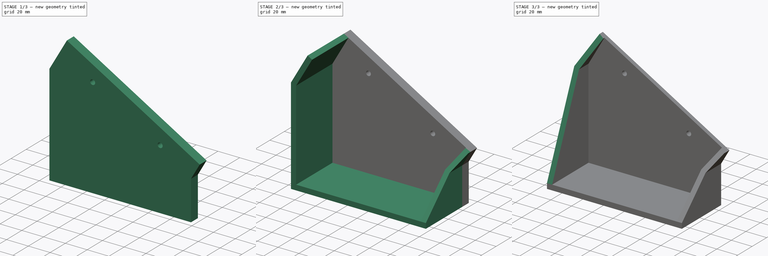
[diagram: build sequence overview — one tinted view per stage of 3, left to right]
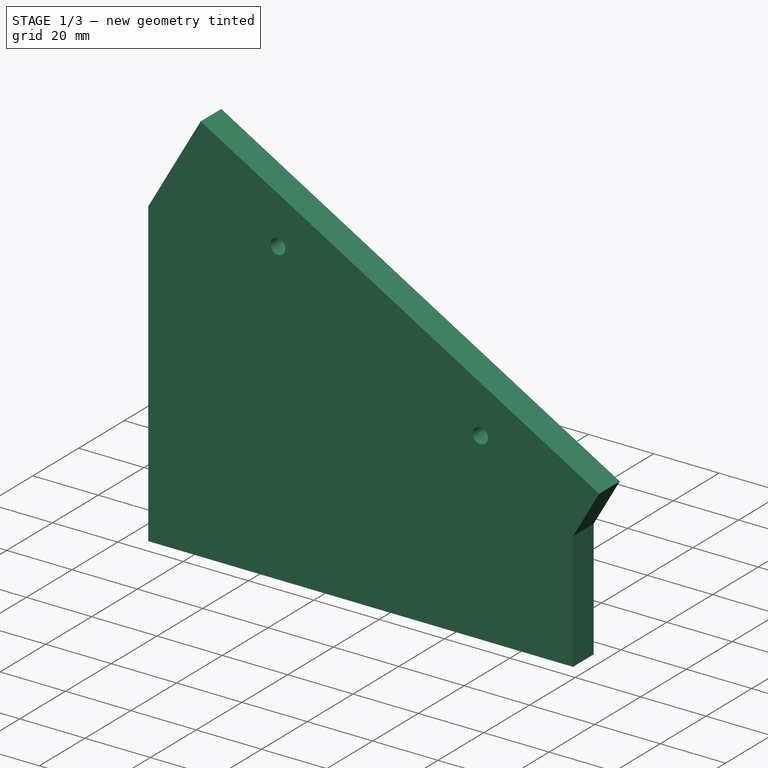
[diagram: stage 1 of 3 — iso view after this stage's code; geometry added in this stage tinted green]
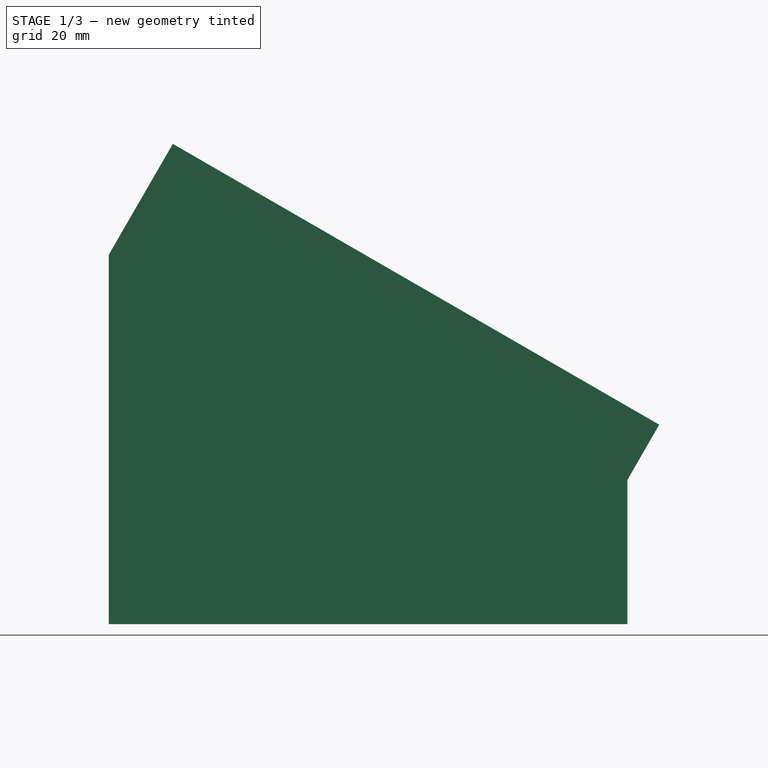
[diagram: stage 1 of 3 — front view after this stage's code; geometry added in this stage tinted green]
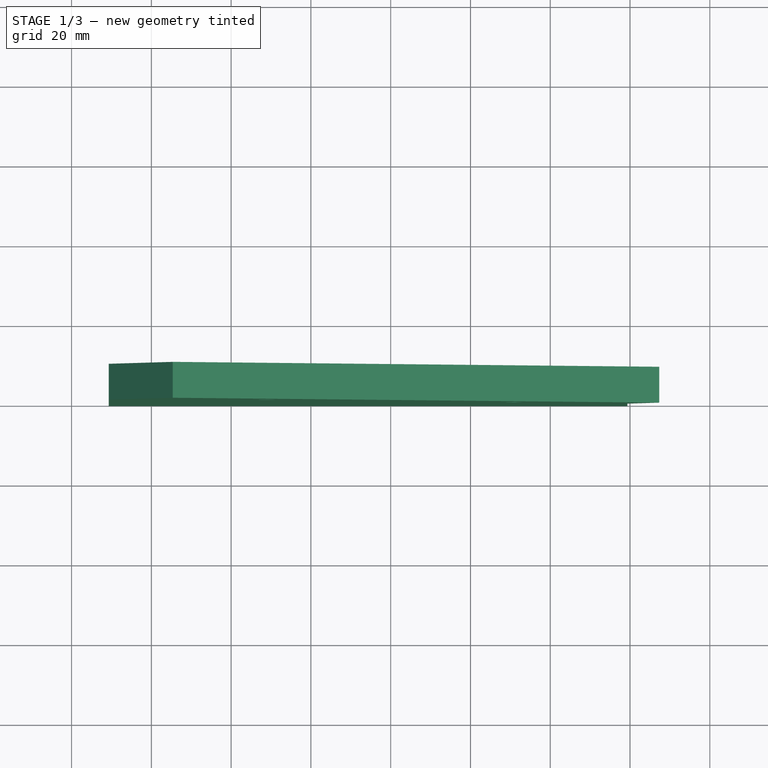
[diagram: stage 1 of 3 — top view after this stage's code; geometry added in this stage tinted green]
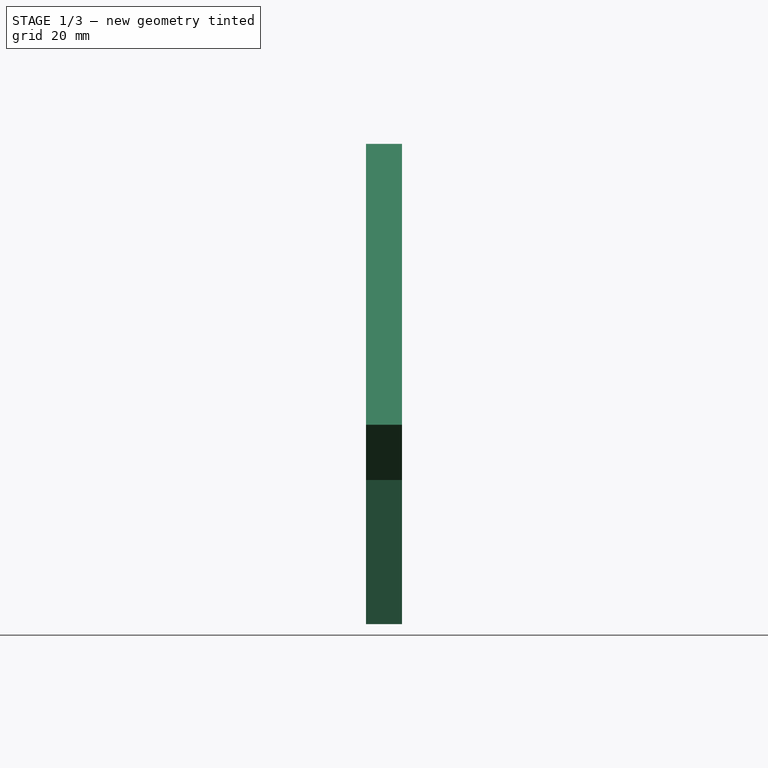
[diagram: stage 1 of 3 — right view after this stage's code; geometry added in this stage tinted green]
FCSTD DOCUMENT  (FreeCAD 0.21R33668 +26 (Git))
Label: eurorack_leg
License: All rights reserved
LicenseURL: https://en.wikipedia.org/wiki/All_rights_reserved
objects: Sketcher::SketchObject×8, PartDesign::Pad×3, PartDesign::Plane×3, PartDesign::Pocket×3, PartDesign::SubtractivePipe×1, PartDesign::Body×1
note: 26 computed .brp shape members not serialized (recipe doc carries the construction recipe); baked Part::Feature solids carry a one-line shape summary decoded from their .brp

FEATURE [Sketcher::SketchObject] Sketch
  FullyConstrained = true
  MapMode = 5
  Placement = pos=(0,0,0) rot=(1,0,0;1.5708rad)
  Support = -> [XZ_Plane]
  sketch-geometry (14):
    g0: LineSegment StartX=-70.6775 StartY=0 StartZ=0 EndX=59.3225 EndY=0 EndZ=0
    g1: LineSegment StartX=-70.6775 StartY=0 StartZ=0 EndX=-70.6775 EndY=92.597 EndZ=0
    g2: LineSegment StartX=67.3225 StartY=50 StartZ=0 EndX=-54.6225 EndY=120.405 EndZ=0
    g3: Circle CenterX=-30.9821 CenterY=92.0915 CenterZ=0 NormalX=0 NormalY=0 NormalZ=1 AngleXU=0 Radius=2.3
    g4: Circle CenterX=30.9821 CenterY=56.3165 CenterZ=0 NormalX=0 NormalY=0 NormalZ=1 AngleXU=0 Radius=2.3
    g5: GeomPoint X=0 Y=74.204 Z=0
    g6: LineSegment StartX=-62.9924 StartY=95.908 StartZ=0 EndX=50.2924 EndY=30.503 EndZ=0
    g7: LineSegment StartX=-62.9924 StartY=95.908 StartZ=0 EndX=-50.2924 EndY=117.905 EndZ=0
    g8: LineSegment StartX=-50.2924 StartY=117.905 StartZ=0 EndX=62.9924 EndY=52.5 EndZ=0
    g9: LineSegment StartX=62.9924 StartY=52.5 StartZ=0 EndX=50.2924 EndY=30.503 EndZ=0
    g10: LineSegment StartX=-56.6424 StartY=106.906 StartZ=0 EndX=56.6424 EndY=41.5015 EndZ=0
    g11: LineSegment StartX=-54.6225 StartY=120.405 StartZ=0 EndX=-70.6775 EndY=92.597 EndZ=0
    g12: LineSegment StartX=67.3225 StartY=50 StartZ=0 EndX=59.3225 EndY=36.1436 EndZ=0
    g13: LineSegment StartX=59.3225 StartY=36.1436 StartZ=0 EndX=59.3225 EndY=0 EndZ=0
  constraints (44):
    c: Coincident(g1,g0)
    c: Vertical(g1)
    c: Angle(g1,g2) = 1.0472
    c: Equal(g4,g3)
    c: Diameter(g4) = 4.6
    c: Symmetric(g3,g4,g5)
    c: Parallel(g6,g2)
    c: Coincident(g7,g6)
    c: Coincident(g9,g6)
    c: Parallel(g8,g2)
    c: Perpendicular(g8,g9)
    c: Perpendicular(g8,g7)
    c: Distance(g7) = 25.4
    c: Distance(g6) = 130.81
    c: PointOnObject(g10,g9)
    c: Parallel(g10,g8)
    c: Symmetric(g6,g7,g10)
    c: PointOnObject(g3,g10)
    c: Coincident(g7,g8)
    c: Coincident(g9,g8)
    c: Symmetric(g10,g10,g5)
    c: PointOnObject(g7,g2)
    c: PointOnObject(g5,g-2)
    c: Distance(g3,g4) = 71.55
    c: Parallel(g11,g7)
    c: Coincident(g13,g12)
    c: Parallel(g12,g9)
    c: Vertical(g13)
    c: Distance(g12,g8) = 5
    c: Distance(g11,g7) = 5
    c: Coincident(g2,g11)
    c: Coincident(g1,g11)
    c: Coincident(g0,g13)
    c: Coincident(g2,g12)
    c: DistanceY(g-1,g2) = 50
    c: Horizontal(g0)
    c: PointOnObject(g0,g-1)
    c: DistanceX(g0,g0) = 130
    c: Distance(g12) = 16
    c: Angle(g1,g11) = 2.61799
    c: Distance(g2) = 140.81
    c: DistanceX(g-1,g2) = 67.3225
    c: DistanceX(g0,g-1) = 70.6775
    c: Distance(g3,g11) = 34.63
FEATURE [PartDesign::Pad] Pad
  Direction = (0,-1,-2e-16)
  Length = 9
  Length2 = 10
  Placement = pos=(0,0,0) rot=(1,0,0;1.5708rad)
  Profile = -> Sketch
  ReferenceAxis = -> Sketch [N_Axis]
  Refine = true
  Reversed = true
  Type = 0
FEATURE [Sketcher::SketchObject] Sketch001
  FullyConstrained = true
  MapMode = 5
  Support = -> [XY_Plane]
  sketch-geometry (4):
    g0: LineSegment StartX=-70.6775 StartY=9 StartZ=0 EndX=59.3225 EndY=9 EndZ=0
    g1: LineSegment StartX=59.3225 StartY=9 StartZ=0 EndX=59.3225 EndY=-50 EndZ=0
    g2: LineSegment StartX=59.3225 StartY=-50 StartZ=0 EndX=-70.6775 EndY=-50 EndZ=0
    g3: LineSegment StartX=-70.6775 StartY=-50 StartZ=0 EndX=-70.6775 EndY=9 EndZ=0
  constraints (12):
    c: Coincident(g0,g1)
    c: Coincident(g1,g2)
    c: Coincident(g2,g3)
    c: Coincident(g3,g0)
    c: Horizontal(g0)
    c: Horizontal(g2)
    c: Vertical(g1)
    c: Vertical(g3)
    c: DistanceX(g0,g0) = 130
    c: DistanceX(g-1,g0) = 59.3225
    c: DistanceY(g1,g-1) = 50
    c: DistanceY(g-1,g0) = 9
FEATURE [PartDesign::Plane] DatumPlane
  AttachmentOffset = pos=(0,0,67.3225) rot=(0,0,1;0rad)
  Length = 95.8858
  MapMode = 5
  Placement = pos=(67.3225,-1.49e-14,1.49e-14) rot=(0.57735,0.57735,0.57735;2.0944rad)
  ResizeMode = 0
  Support = -> [YZ_Plane]
  Width = 166.291
FEATURE [Sketcher::SketchObject] Sketch002
  FullyConstrained = true
  MapMode = 5
  Placement = pos=(67.3225,-1.49e-14,1.49e-14) rot=(0.57735,0.57735,0.57735;2.0944rad)
  Support = -> [DatumPlane]
  sketch-geometry (6):
    g0: LineSegment StartX=-50 StartY=0 StartZ=0 EndX=0 EndY=0 EndZ=0
    g1: LineSegment StartX=0 StartY=0 StartZ=0 EndX=0 EndY=53 EndZ=0
    g2: LineSegment StartX=-50 StartY=0 StartZ=0 EndX=-50 EndY=5 EndZ=0
    g3: LineSegment StartX=-50 StartY=5 StartZ=0 EndX=0 EndY=53 EndZ=0
    g4: LineSegment StartX=-50 StartY=5 StartZ=0 EndX=-50 EndY=53 EndZ=0
    g5: LineSegment StartX=-50 StartY=53 StartZ=0 EndX=0 EndY=53 EndZ=0
  constraints (16):
    c: PointOnObject(g0,g-1)
    c: Coincident(g0,g-1)
    c: Coincident(g1,g0)
    c: PointOnObject(g1,g-2)
    c: Distance(g1) = 53
    c: DistanceX(g0,g0) = 50
    c: Coincident(g2,g0)
    c: Vertical(g2)
    c: Coincident(g3,g2)
    c: DistanceY(g2,g2) = 5
    c: Coincident(g4,g2)
    c: Vertical(g4)
    c: Coincident(g5,g4)
    c: Coincident(g5,g3)
    c: Horizontal(g5)
    c: Coincident(g3,g1)
FEATURE [PartDesign::Plane] DatumPlane001
  AttachmentOffset = pos=(0,0,-70.6775) rot=(0,0,1;0rad)
  Length = 95.8858
  MapMode = 5
  Placement = pos=(-70.6775,1.57e-14,-1.57e-14) rot=(0.57735,0.57735,0.57735;2.0944rad)
  ResizeMode = 0
  Support = -> [YZ_Plane]
  Width = 166.291
FEATURE [Sketcher::SketchObject] Sketch003
  FullyConstrained = true
  MapMode = 5
  Placement = pos=(-70.6775,1.57e-14,-1.57e-14) rot=(0.57735,0.57735,0.57735;2.0944rad)
  Support = -> [DatumPlane001]
  sketch-geometry (6):
    g0: LineSegment StartX=0 StartY=121.405 StartZ=0 EndX=0 EndY=0 EndZ=0
    g1: LineSegment StartX=0 StartY=0 StartZ=0 EndX=-50 EndY=0 EndZ=0
    g2: LineSegment StartX=-50 StartY=0 StartZ=0 EndX=-50 EndY=5 EndZ=0
    g3: LineSegment StartX=-50 StartY=5 StartZ=0 EndX=0 EndY=121.405 EndZ=0
    g4: LineSegment StartX=-50 StartY=5 StartZ=0 EndX=-50 EndY=121.405 EndZ=0
    g5: LineSegment StartX=-50 StartY=121.405 StartZ=0 EndX=0 EndY=121.405 EndZ=0
  constraints (16):
    c: PointOnObject(g0,g-2)
    c: Coincident(g0,g-1)
    c: Coincident(g1,g0)
    c: PointOnObject(g1,g-1)
    c: Coincident(g2,g1)
    c: Coincident(g3,g2)
    c: Vertical(g2)
    c: DistanceX(g1,g1) = 50
    c: DistanceY(g0,g0) = 121.405
    c: DistanceY(g2,g2) = 5
    c: Coincident(g4,g3)
    c: Vertical(g4)
    c: Coincident(g5,g3)
    c: Coincident(g5,g4)
    c: Horizontal(g5)
    c: Coincident(g3,g0)
FEATURE [Sketcher::SketchObject] Sketch004
  FullyConstrained = true
  MapMode = 5
  Placement = pos=(0,0,0) rot=(1,0,0;1.5708rad)
  Support = -> [XZ_Plane]
  sketch-geometry (13):
    g0: LineSegment StartX=-70.6775 StartY=92.597 StartZ=0 EndX=-70.6775 EndY=0 EndZ=0
    g1: LineSegment StartX=-70.6775 StartY=0 StartZ=0 EndX=-65.6775 EndY=0 EndZ=0
    g2: LineSegment StartX=-65.6775 StartY=0 StartZ=0 EndX=-65.6775 EndY=91.2572 EndZ=0
    g3: LineSegment StartX=59.3225 StartY=36.1436 StartZ=0 EndX=59.3225 EndY=0 EndZ=0
    g4: LineSegment StartX=59.3225 StartY=0 StartZ=0 EndX=54.3225 EndY=0 EndZ=0
    g5: LineSegment StartX=-70.6775 StartY=92.597 StartZ=0 EndX=-54.6225 EndY=120.405 EndZ=0
    g6: LineSegment StartX=59.3225 StartY=36.1436 StartZ=0 EndX=67.3225 EndY=50 EndZ=0
    g7: LineSegment StartX=-54.6225 StartY=120.405 StartZ=0 EndX=-50.2924 EndY=117.905 EndZ=0
    g8: LineSegment StartX=67.3225 StartY=50 StartZ=0 EndX=62.9924 EndY=52.5 EndZ=0
    g9: LineSegment StartX=62.9924 StartY=52.5 StartZ=0 EndX=54.3225 EndY=37.4833 EndZ=0
    g10: LineSegment StartX=54.3225 StartY=37.4833 StartZ=0 EndX=54.3225 EndY=0 EndZ=0
    g11: LineSegment StartX=-65.6775 StartY=91.2572 StartZ=0 EndX=-50.2924 EndY=117.905 EndZ=0
    g12: LineSegment StartX=67.3225 StartY=50 StartZ=0 EndX=-54.6225 EndY=120.405 EndZ=0
  constraints (39):
    c: Vertical(g0)
    c: PointOnObject(g0,g-1)
    c: Coincident(g1,g0)
    c: PointOnObject(g1,g-1)
    c: Coincident(g2,g1)
    c: Vertical(g2)
    c: DistanceX(g1,g1) = 5
    c: Vertical(g3)
    c: Coincident(g4,g3)
    c: PointOnObject(g4,g-1)
    c: DistanceX(g4,g4) = 5
    c: DistanceX(g0,g3) = 130
    c: Horizontal(g4)
    c: DistanceX(g-1,g3) = 59.3225
    c: Coincident(g0,g5)
    c: Coincident(g7,g5)
    c: Coincident(g3,g6)
    c: Coincident(g8,g6)
    c: Coincident(g9,g8)
    c: Coincident(g10,g9)
    c: Coincident(g10,g4)
    c: Vertical(g10)
    c: Angle(g3,g6) = 2.61799
    c: Coincident(g7,g11)
    c: Parallel(g6,g9)
    c: Parallel(g9,g11)
    c: Parallel(g11,g5)
    c: Perpendicular(g11,g7)
    c: Perpendicular(g9,g8)
    c: Coincident(g2,g11)
    c: Equal(g7,g1)
    c: Equal(g8,g4)
    c: DistanceY(g-1,g6) = 50
    c: Distance(g6) = 16
    c: Coincident(g12,g6)
    c: Coincident(g12,g5)
    c: Parallel(g12,g7)
    c: Distance(g12) = 140.81
    c: DistanceY(g0,g5) = 120.405
FEATURE [Sketcher::SketchObject] Sketch005
  FullyConstrained = true
  MapMode = 5
  Placement = pos=(0,0,0) rot=(1,0,0;1.5708rad)
  Support = -> [XZ_Plane]
  sketch-geometry (14):
    g0: LineSegment StartX=-70.6775 StartY=0 StartZ=0 EndX=59.3225 EndY=0 EndZ=0
    g1: LineSegment StartX=-70.6775 StartY=0 StartZ=0 EndX=-70.6775 EndY=92.597 EndZ=0
    g2: LineSegment StartX=67.3225 StartY=50 StartZ=0 EndX=-54.6225 EndY=120.405 EndZ=0
    g3: Circle CenterX=-30.9821 CenterY=92.0915 CenterZ=0 NormalX=0 NormalY=0 NormalZ=1 AngleXU=0 Radius=2.3
    g4: Circle CenterX=30.9821 CenterY=56.3165 CenterZ=0 NormalX=0 NormalY=0 NormalZ=1 AngleXU=0 Radius=2.3
    g5: GeomPoint X=0 Y=74.204 Z=0
    g6: LineSegment StartX=-62.9924 StartY=95.908 StartZ=0 EndX=50.2924 EndY=30.503 EndZ=0
    g7: LineSegment StartX=-62.9924 StartY=95.908 StartZ=0 EndX=-50.2924 EndY=117.905 EndZ=0
    g8: LineSegment StartX=-50.2924 StartY=117.905 StartZ=0 EndX=62.9924 EndY=52.5 EndZ=0
    g9: LineSegment StartX=62.9924 StartY=52.5 StartZ=0 EndX=50.2924 EndY=30.503 EndZ=0
    g10: LineSegment StartX=-56.6424 StartY=106.906 StartZ=0 EndX=56.6424 EndY=41.5015 EndZ=0
    g11: LineSegment StartX=-54.6225 StartY=120.405 StartZ=0 EndX=-70.6775 EndY=92.597 EndZ=0
    g12: LineSegment StartX=67.3225 StartY=50 StartZ=0 EndX=59.3225 EndY=36.1436 EndZ=0
    g13: LineSegment StartX=59.3225 StartY=36.1436 StartZ=0 EndX=59.3225 EndY=0 EndZ=0
  constraints (44):
    c: Coincident(g1,g0)
    c: Vertical(g1)
    c: Angle(g1,g2) = 1.0472
    c: Equal(g4,g3)
    c: Diameter(g4) = 4.6
    c: Symmetric(g3,g4,g5)
    c: Parallel(g6,g2)
    c: Coincident(g7,g6)
    c: Coincident(g9,g6)
    c: Parallel(g8,g2)
    c: Perpendicular(g8,g9)
    c: Perpendicular(g8,g7)
    c: Distance(g7) = 25.4
    c: Distance(g6) = 130.81
    c: PointOnObject(g10,g9)
    c: Parallel(g10,g8)
    c: Symmetric(g6,g7,g10)
    c: PointOnObject(g3,g10)
    c: Coincident(g7,g8)
    c: Coincident(g9,g8)
    c: Symmetric(g10,g10,g5)
    c: PointOnObject(g7,g2)
    c: PointOnObject(g5,g-2)
    c: Distance(g3,g4) = 71.55
    c: Parallel(g11,g7)
    c: Coincident(g13,g12)
    c: Parallel(g12,g9)
    c: Vertical(g13)
    c: Distance(g12,g8) = 5
    c: Distance(g11,g7) = 5
    c: Coincident(g2,g11)
    c: Coincident(g1,g11)
    c: Coincident(g0,g13)
    c: Coincident(g2,g12)
    c: DistanceY(g-1,g2) = 50
    c: Horizontal(g0)
    c: PointOnObject(g0,g-1)
    c: DistanceX(g0,g0) = 130
    c: Distance(g12) = 16
    c: Angle(g1,g11) = 2.61799
    c: Distance(g2) = 140.81
    c: DistanceX(g-1,g2) = 67.3225
    c: DistanceX(g0,g-1) = 70.6775
    c: Distance(g3,g11) = 34.63
FEATURE [PartDesign::Pocket] Pocket002
  BaseFeature = -> Pad
  Direction = (0,1,2e-16)
  Length = 8
  Length2 = 5
  Placement = pos=(0,0,0) rot=(1,0,0;1.5708rad)
  Profile = -> Sketch005
  ReferenceAxis = -> Sketch005 [N_Axis]
  Refine = true
  Type = 0
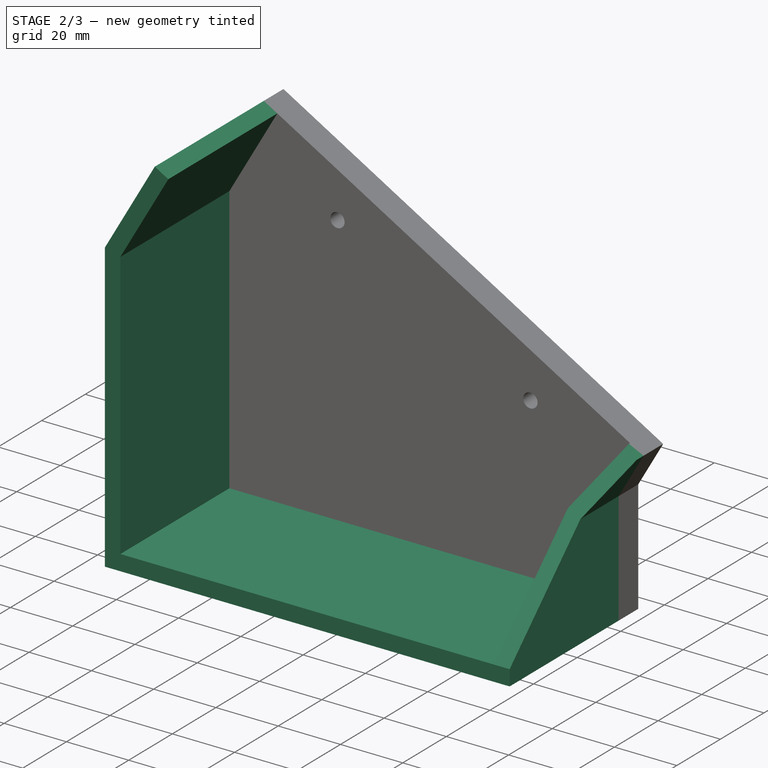
[diagram: stage 2 of 3 — iso view after this stage's code; geometry added in this stage tinted green]
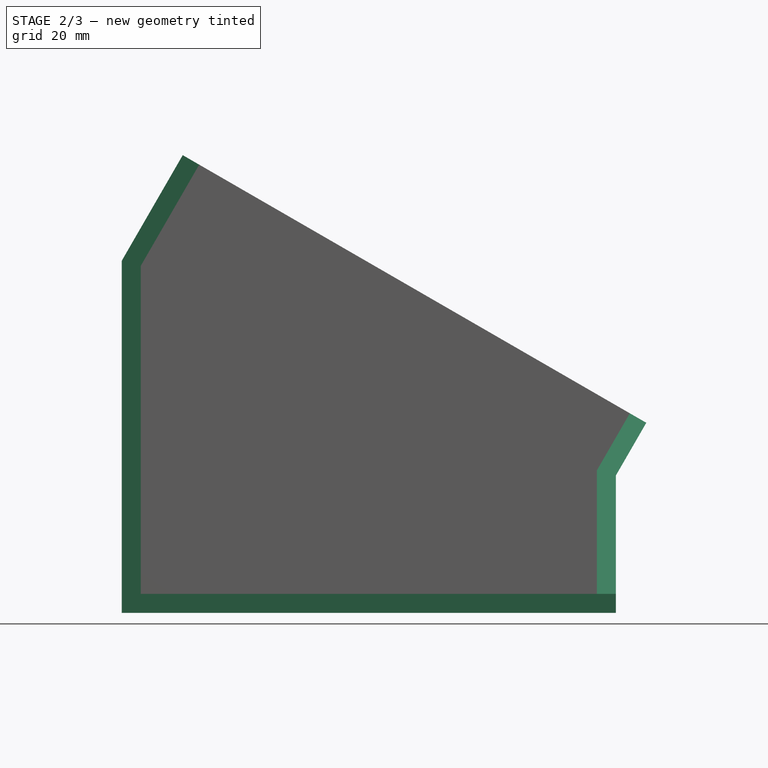
[diagram: stage 2 of 3 — front view after this stage's code; geometry added in this stage tinted green]
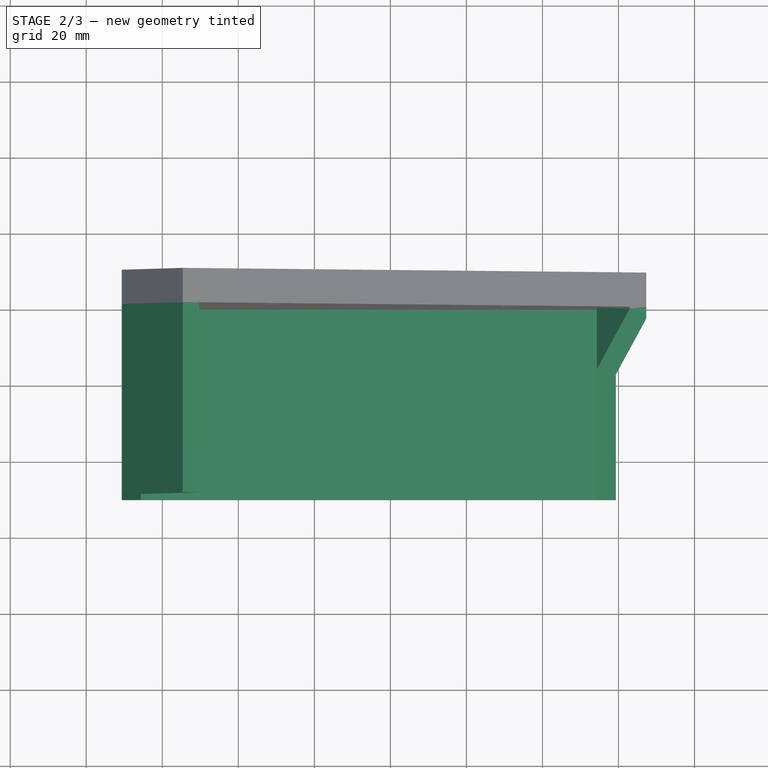
[diagram: stage 2 of 3 — top view after this stage's code; geometry added in this stage tinted green]
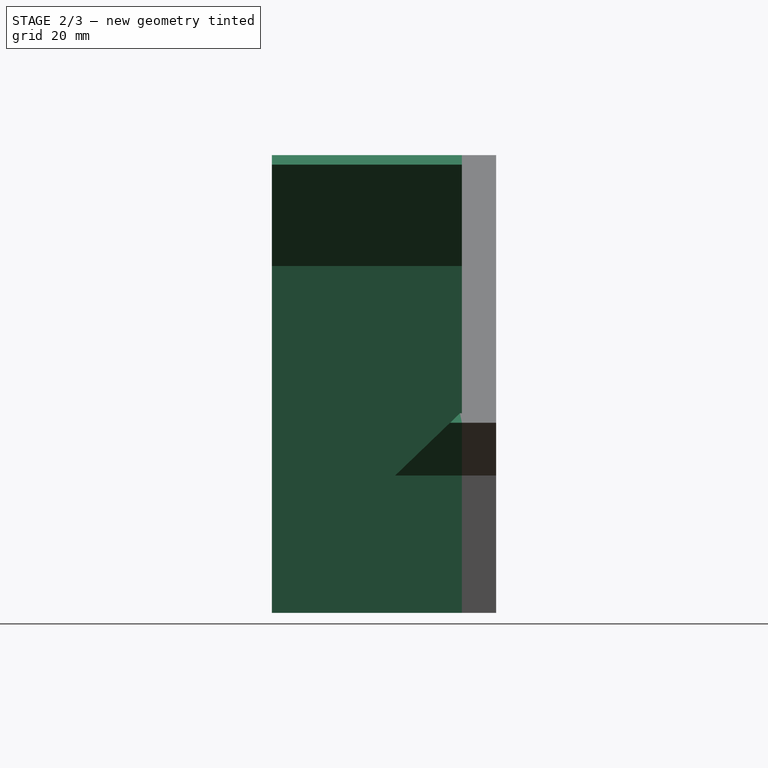
[diagram: stage 2 of 3 — right view after this stage's code; geometry added in this stage tinted green]
FEATURE [PartDesign::Pad] Pad001
  BaseFeature = -> Pocket002
  Direction = (0,0,1)
  Length = 5
  Length2 = 10
  Placement = pos=(0,0,0) rot=(1,0,0;1.5708rad)
  Profile = -> Sketch001
  ReferenceAxis = -> Sketch001 [N_Axis]
  Refine = true
  Type = 0
FEATURE [PartDesign::Pad] Pad002
  BaseFeature = -> Pad001
  Direction = (0,-1,-2e-16)
  Length = 10
  Length2 = 10
  Placement = pos=(0,0,0) rot=(1,0,0;1.5708rad)
  Profile = -> Sketch004
  ReferenceAxis = -> Sketch004 [N_Axis]
  Refine = true
  Type = 3
  UpToFace = -> Pad001 [Face11]
FEATURE [PartDesign::Pocket] Pocket
  BaseFeature = -> Pad002
  Direction = (-1,1e-16,-1e-16)
  Length = 0
  Length2 = 5
  Placement = pos=(0,0,0) rot=(1,0,0;1.5708rad)
  Profile = -> Sketch002
  ReferenceAxis = -> Sketch002 [N_Axis]
  Refine = true
  Type = 3
  UpToFace = -> Pad002 [Face13]
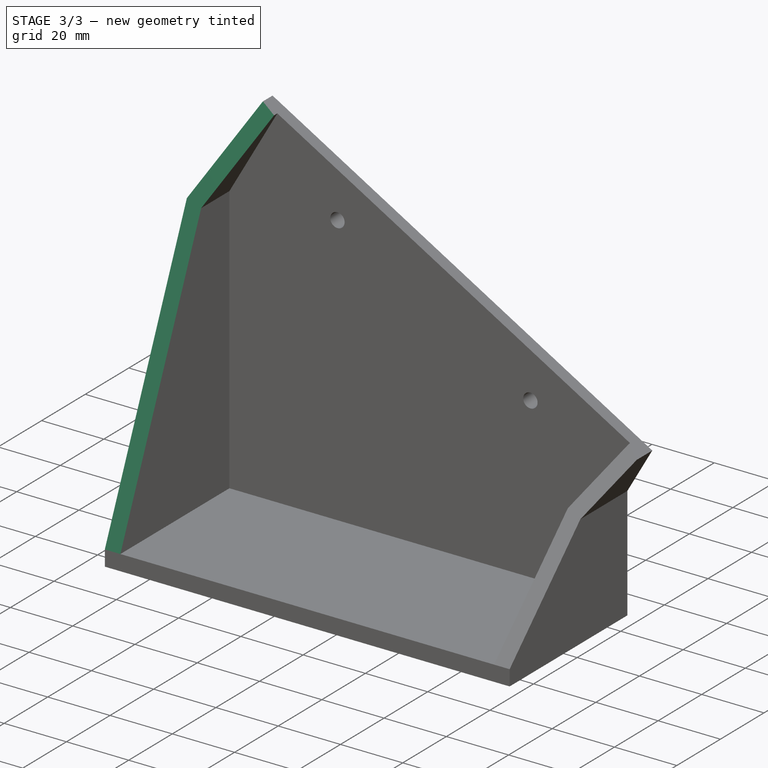
[diagram: stage 3 of 3 — iso view after this stage's code; geometry added in this stage tinted green]
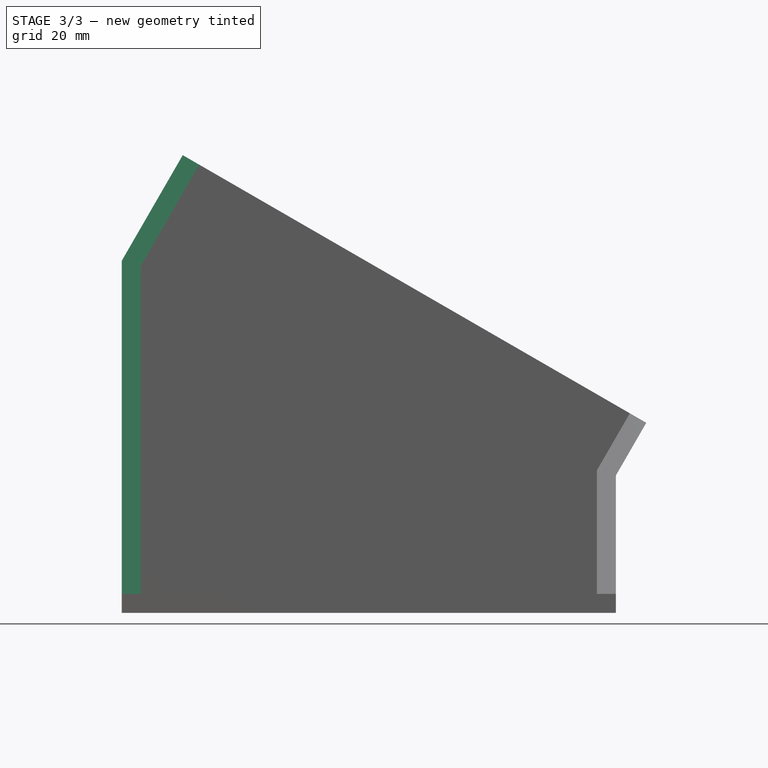
[diagram: stage 3 of 3 — front view after this stage's code; geometry added in this stage tinted green]
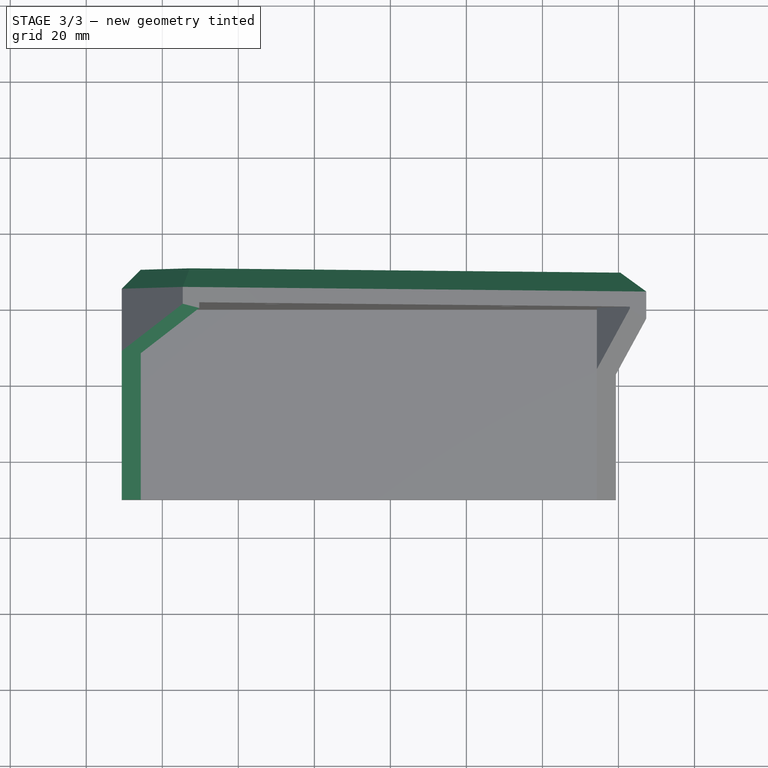
[diagram: stage 3 of 3 — top view after this stage's code; geometry added in this stage tinted green]
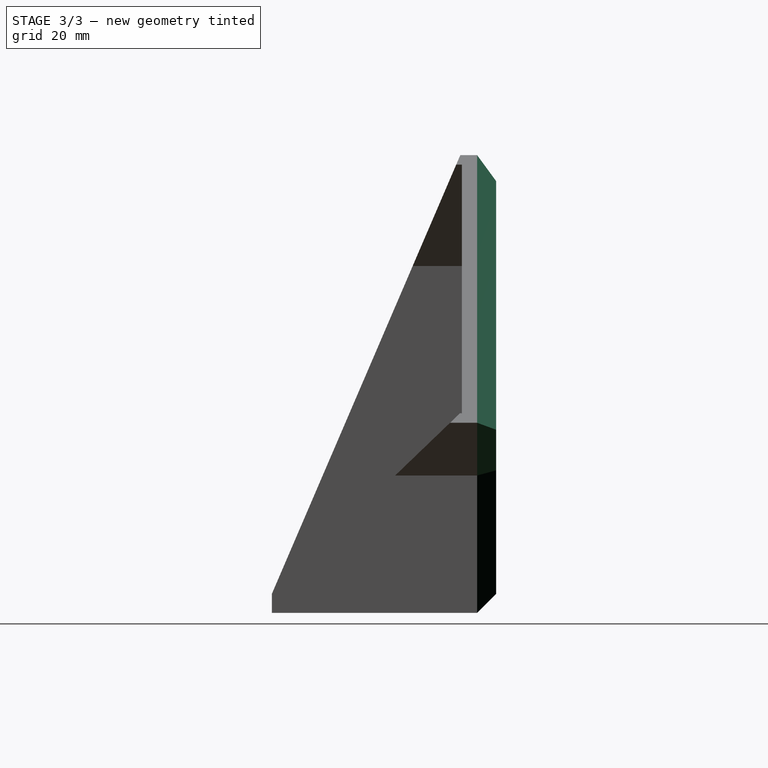
[diagram: stage 3 of 3 — right view after this stage's code; geometry added in this stage tinted green]
FEATURE [PartDesign::Pocket] Pocket001
  BaseFeature = -> Pocket
  Direction = (-1,1e-16,-1e-16)
  Length = 50
  Length2 = 5
  Placement = pos=(0,0,0) rot=(1,0,0;1.5708rad)
  Profile = -> Sketch003
  ReferenceAxis = -> Sketch003 [N_Axis]
  Refine = true
  Reversed = true
  Type = 0
FEATURE [Sketcher::SketchObject] Sketch006
  FullyConstrained = true
  MapMode = 5
  Placement = pos=(0,0,0) rot=(0.57735,0.57735,0.57735;2.0944rad)
  Support = -> [YZ_Plane]
  sketch-geometry (3):
    g0: LineSegment StartX=4 StartY=0 StartZ=0 EndX=9 EndY=5 EndZ=0
    g1: LineSegment StartX=9 StartY=5 StartZ=0 EndX=9 EndY=0 EndZ=0
    g2: LineSegment StartX=9 StartY=0 StartZ=0 EndX=4 EndY=0 EndZ=0
  constraints (9):
    c: PointOnObject(g0,g-1)
    c: Coincident(g1,g0)
    c: PointOnObject(g1,g-1)
    c: Coincident(g2,g1)
    c: Coincident(g2,g0)
    c: Vertical(g1)
    c: Angle(g2,g0) = 0.785398
    c: DistanceY(g1,g1) = 5
    c: DistanceX(g-1,g1) = 9
FEATURE [PartDesign::Plane] DatumPlane002
  AttachmentOffset = pos=(0,0,-9) rot=(0,0,1;0rad)
  Length = 166.331
  MapMode = 5
  Placement = pos=(0,9,2e-15) rot=(1,0,0;1.5708rad)
  ResizeMode = 0
  Support = -> [XZ_Plane]
  Width = 173.736
FEATURE [Sketcher::SketchObject] Sketch007
  ExternalGeometry = -> [Pocket001]
  FullyConstrained = true
  MapMode = 5
  Placement = pos=(0,9,2e-15) rot=(1,0,0;1.5708rad)
  Support = -> [DatumPlane002]
  sketch-geometry (6):
    g0: LineSegment StartX=-70.6775 StartY=0 StartZ=0 EndX=59.3225 EndY=0 EndZ=0
    g1: LineSegment StartX=-70.6775 StartY=0 StartZ=0 EndX=-70.6775 EndY=92.597 EndZ=0
    g2: LineSegment StartX=-70.6775 StartY=92.597 StartZ=0 EndX=-54.6225 EndY=120.405 EndZ=0
    g3: LineSegment StartX=-54.6225 StartY=120.405 StartZ=0 EndX=67.3225 EndY=50 EndZ=0
    g4: LineSegment StartX=67.3225 StartY=50 StartZ=0 EndX=59.3225 EndY=36.1436 EndZ=0
    g5: LineSegment StartX=59.3225 StartY=36.1436 StartZ=0 EndX=59.3225 EndY=0 EndZ=0
  constraints (12):
    c: Coincident(g0,g-7)
    c: Coincident(g0,g-6)
    c: Coincident(g1,g0)
    c: Coincident(g1,g-5)
    c: Coincident(g2,g1)
    c: Coincident(g2,g-4)
    c: Coincident(g3,g2)
    c: Coincident(g3,g-8)
    c: Coincident(g4,g3)
    c: Coincident(g4,g-8)
    c: Coincident(g5,g4)
    c: Coincident(g5,g0)
FEATURE [PartDesign::SubtractivePipe] SubtractivePipe
  AuxilleryCurvelinear = true
  AuxillerySpineTangent = false
  BaseFeature = -> Pocket001
  Binormal = (0,0,0)
  Mode = 0
  Placement = pos=(0,0,0) rot=(1,0,0;1.5708rad)
  Profile = -> Sketch006
  Spine = -> Sketch007
  SpineTangent = false
  Transformation = 0
  Transition = 1
FEATURE [PartDesign::Body] Body
  Group = -> [Sketch,Pad,Pocket002,Sketch001,Pad001,Pad002,DatumPlane,Sketch002,DatumPlane001,Sketch003,Sketch004,Pocket,Pocket001,Sketch005,Sketch006,DatumPlane002,Sketch007,SubtractivePipe]
  Origin = -> Origin
  Tip = -> SubtractivePipe
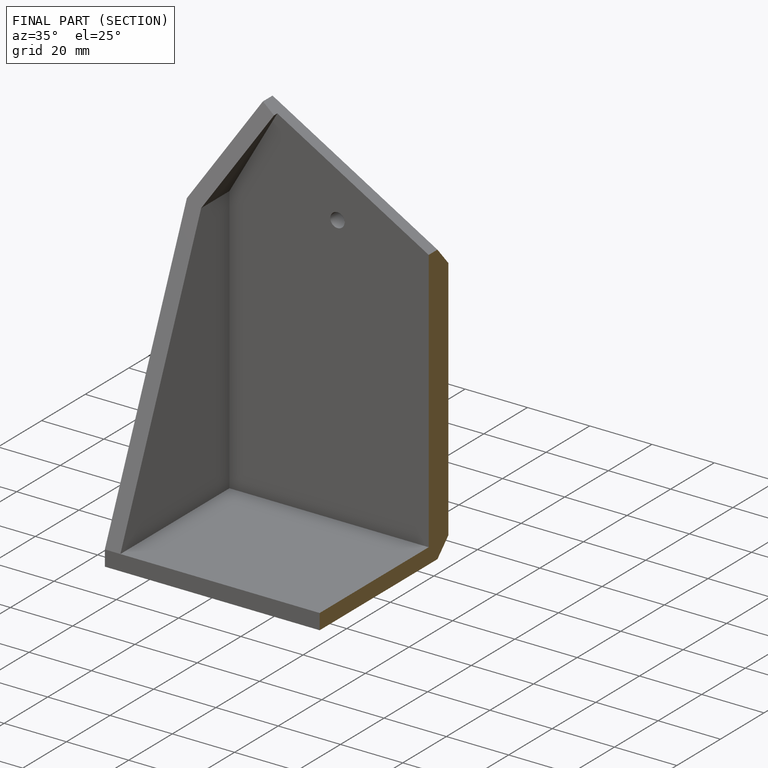
[diagram: finished part — half-section view (interior)]
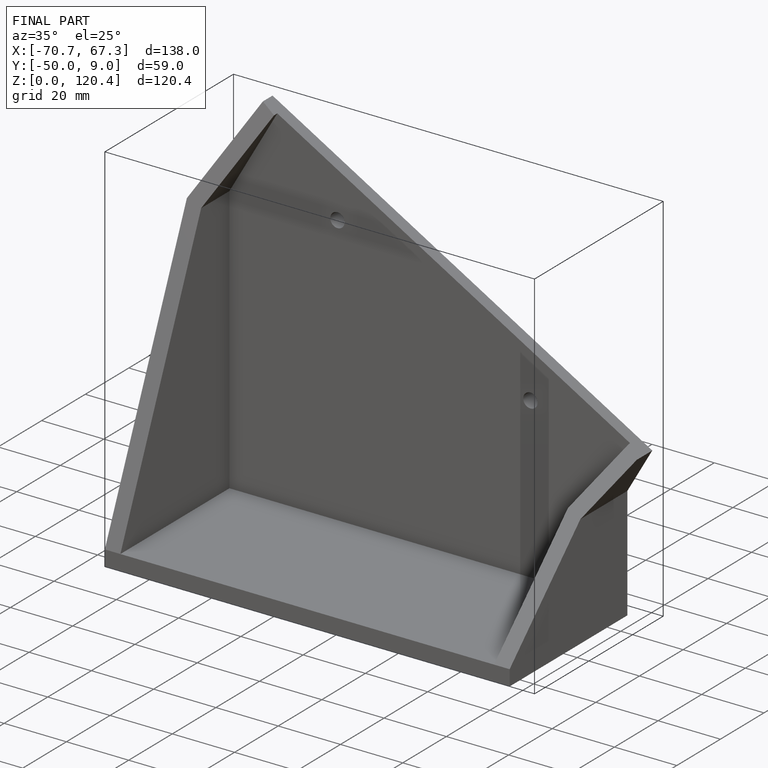
[diagram: finished part — iso view with bounding-box wireframe]
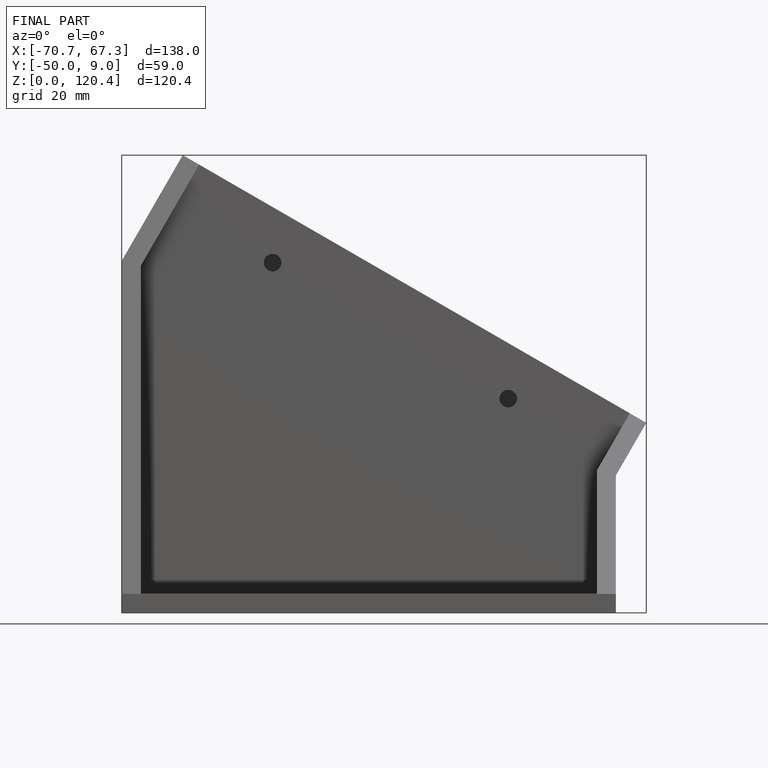
[diagram: finished part — front view with bounding-box wireframe]
